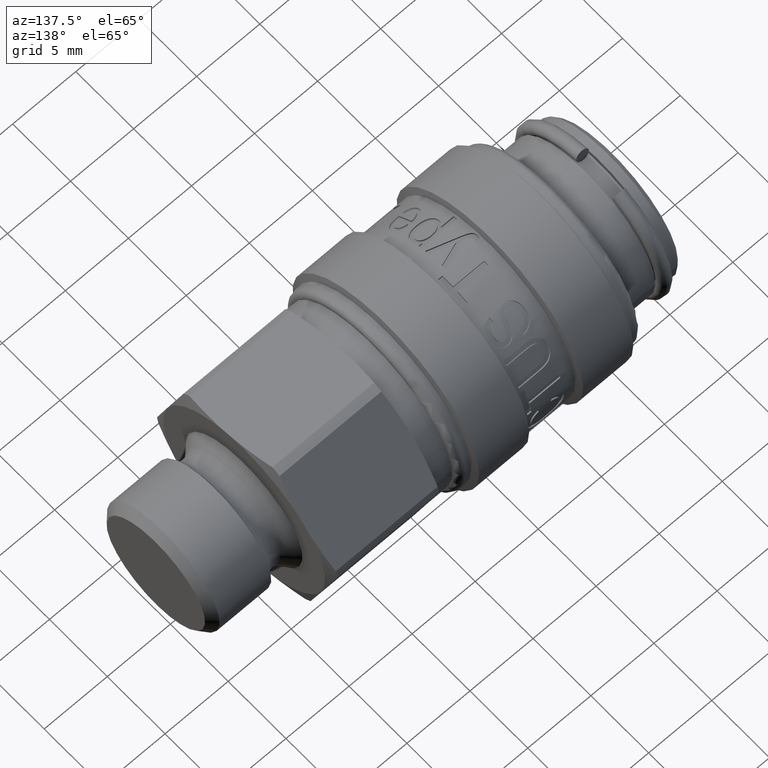
[diagram: clean part render]
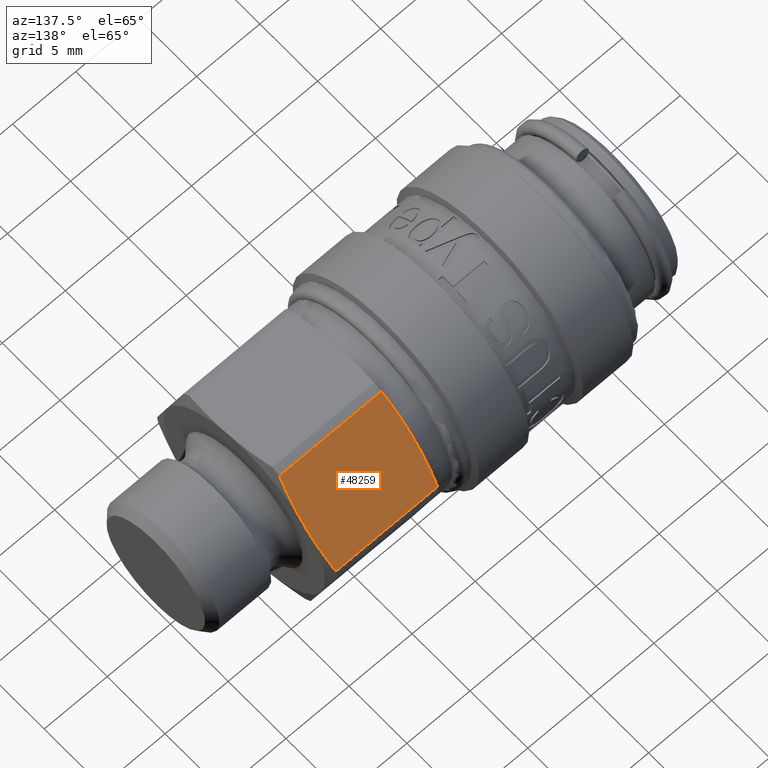
[diagram: same view with one face highlighted and labeled with its STEP entity id]
A machine part, auxiliary view. The second image highlights one B-rep face of the part: STEP entity #48259.
In plain terms, the highlighted planar face has unit normal (0, -0.748, -0.6637).
Its self-contained STEP definition (entity closure, byte-faithful):
#47340=CARTESIAN_POINT('',(20.599999999999994,5.235991409080829,4.645900769929528));
#47341=VERTEX_POINT('',#47340);
#47364=CARTESIAN_POINT('',(28.908845726811986,2.805543717652625,7.385047355863056));
#47365=VERTEX_POINT('',#47364);
#47366=CARTESIAN_POINT('',(20.841154273188014,2.805543717652625,7.385047355863056));
#47367=VERTEX_POINT('',#47366);
#47368=CARTESIAN_POINT('',(28.90884572681199,2.805543717652625,7.385047355863056));
#47369=DIRECTION('',(-1.0,0.0,0.0));
#47370=VECTOR('',#47369,8.067691453623972);
#47371=LINE('',#47368,#47370);
#47372=EDGE_CURVE('',#47365,#47367,#47371,.T.);
#47406=CARTESIAN_POINT('',(29.149999999999995,5.235991409080829,4.645900769929528));
#47407=VERTEX_POINT('',#47406);
#47408=CARTESIAN_POINT('',(29.149999999999995,5.235991409080829,4.645900769929528));
#47409=CARTESIAN_POINT('',(29.149999999999995,4.094170345993754,5.93274815929427));
#47410=CARTESIAN_POINT('',(28.908845726811986,2.805543717652627,7.385047355863053));
#47418=(BOUNDED_CURVE()B_SPLINE_CURVE(2,(#47408,#47409,#47410),.UNSPECIFIED.,.F.,.U.)B_SPLINE_CURVE_WITH_KNOTS((3,3),(0.367169590188574,0.734339180377149),.UNSPECIFIED.)CURVE()GEOMETRIC_REPRESENTATION_ITEM()RATIONAL_B_SPLINE_CURVE((1.0,1.031642241421772,1.0))REPRESENTATION_ITEM(''));
#47419=EDGE_CURVE('',#47407,#47365,#47418,.T.);
#47825=CARTESIAN_POINT('',(28.908845726811986,7.666439100509034,1.906754183996001));
#47826=VERTEX_POINT('',#47825);
#47827=CARTESIAN_POINT('',(28.908845726811986,7.666439100509031,1.906754183996006));
#47828=CARTESIAN_POINT('',(29.149999999999995,6.377812472167904,3.359053380564786));
#47829=CARTESIAN_POINT('',(29.149999999999995,5.235991409080829,4.645900769929528));
#47837=(BOUNDED_CURVE()B_SPLINE_CURVE(2,(#47827,#47828,#47829),.UNSPECIFIED.,.F.,.U.)B_SPLINE_CURVE_WITH_KNOTS((3,3),(0.0,0.367169590188574),.UNSPECIFIED.)CURVE()GEOMETRIC_REPRESENTATION_ITEM()RATIONAL_B_SPLINE_CURVE((1.0,1.031642241421763,1.0))REPRESENTATION_ITEM(''));
#47838=EDGE_CURVE('',#47826,#47407,#47837,.T.);
#47978=CARTESIAN_POINT('',(20.841154273188014,7.666439100509034,1.906754183996001));
#47979=VERTEX_POINT('',#47978);
#47980=CARTESIAN_POINT('',(20.841154273188017,7.666439100509034,1.906754183996001));
#47981=DIRECTION('',(1.0,0.0,0.0));
#47982=VECTOR('',#47981,8.067691453623972);
#47983=LINE('',#47980,#47982);
#47984=EDGE_CURVE('',#47979,#47826,#47983,.T.);
#48003=CARTESIAN_POINT('',(20.841154273188014,2.805543717652612,7.385047355863071));
#48004=CARTESIAN_POINT('',(20.599999999999994,4.094170345993734,5.932748159294295));
#48005=CARTESIAN_POINT('',(20.599999999999994,5.235991409080829,4.645900769929528));
#48013=(BOUNDED_CURVE()B_SPLINE_CURVE(2,(#48003,#48004,#48005),.UNSPECIFIED.,.F.,.U.)B_SPLINE_CURVE_WITH_KNOTS((3,3),(0.0,0.367169590188577),.UNSPECIFIED.)CURVE()GEOMETRIC_REPRESENTATION_ITEM()RATIONAL_B_SPLINE_CURVE((1.0,1.031642241421707,1.0))REPRESENTATION_ITEM(''));
#48014=EDGE_CURVE('',#47367,#47341,#48013,.T.);
#48039=CARTESIAN_POINT('',(20.599999999999994,5.235991409080829,4.645900769929528));
#48040=CARTESIAN_POINT('',(20.599999999999994,6.377812472167923,3.359053380564764));
#48041=CARTESIAN_POINT('',(20.841154273188014,7.666439100509046,1.906754183995988));
#48049=(BOUNDED_CURVE()B_SPLINE_CURVE(2,(#48039,#48040,#48041),.UNSPECIFIED.,.F.,.U.)B_SPLINE_CURVE_WITH_KNOTS((3,3),(0.367169590188577,0.734339180377154),.UNSPECIFIED.)CURVE()GEOMETRIC_REPRESENTATION_ITEM()RATIONAL_B_SPLINE_CURVE((1.0,1.031642241421723,1.0))REPRESENTATION_ITEM(''));
#48050=EDGE_CURVE('',#47341,#47979,#48049,.T.);
#48246=CARTESIAN_POINT('',(19.146334310459181,5.235991409080829,4.645900769929528));
#48247=DIRECTION('',(0.0,-0.747998772725833,-0.663700109989932));
#48248=DIRECTION('',(0.0,-0.663700109989932,0.747998772725833));
#48249=AXIS2_PLACEMENT_3D('',#48246,#48247,#48248);
#48250=PLANE('',#48249);
#48251=ORIENTED_EDGE('',*,*,#48050,.F.);
#48252=ORIENTED_EDGE('',*,*,#48014,.F.);
#48253=ORIENTED_EDGE('',*,*,#47372,.F.);
#48254=ORIENTED_EDGE('',*,*,#47419,.F.);
#48255=ORIENTED_EDGE('',*,*,#47838,.F.);
#48256=ORIENTED_EDGE('',*,*,#47984,.F.);
#48257=EDGE_LOOP('',(#48251,#48252,#48253,#48254,#48255,#48256));
#48258=FACE_OUTER_BOUND('',#48257,.T.);
#48259=ADVANCED_FACE('',(#48258),#48250,.F.);